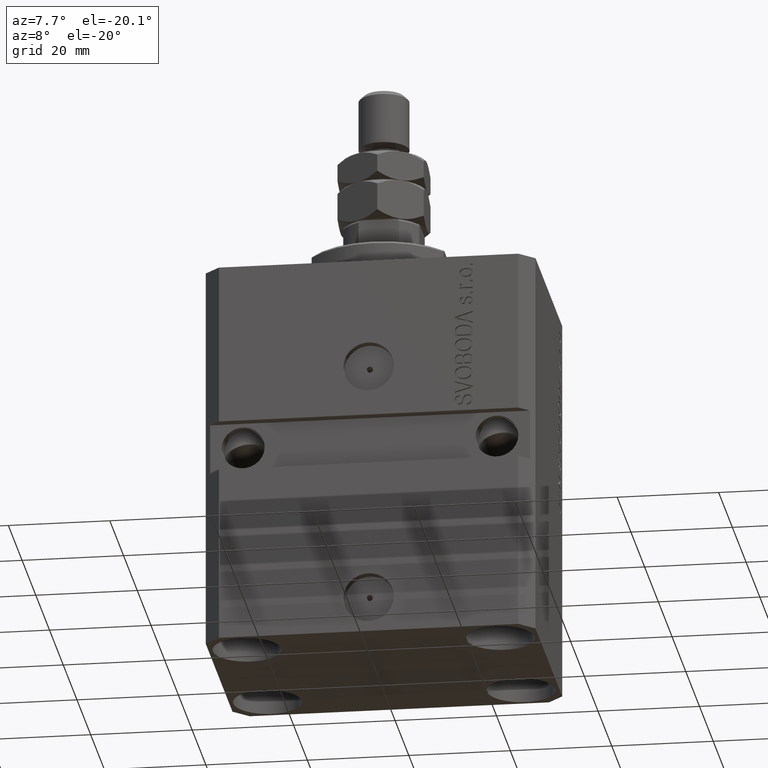
[diagram: clean part render]
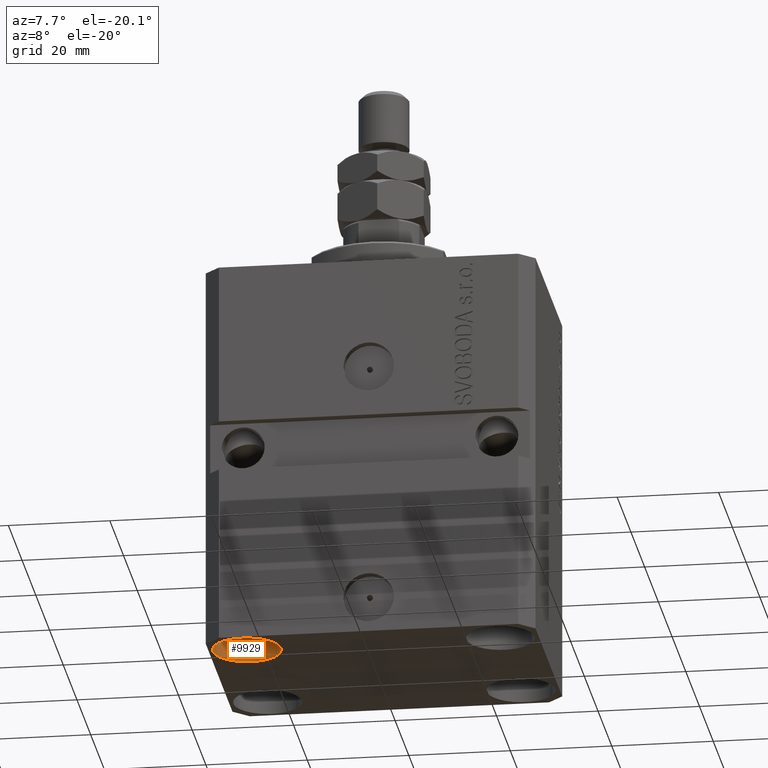
[diagram: same view with one face highlighted and labeled with its STEP entity id]
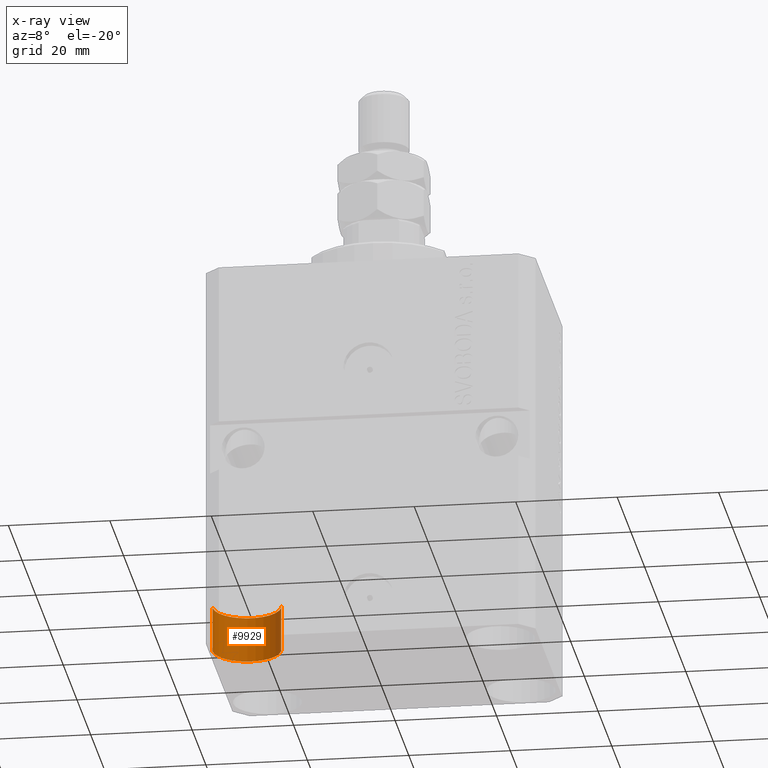
[diagram: x-ray of the same camera — body ghosted, the highlighted face saturated]
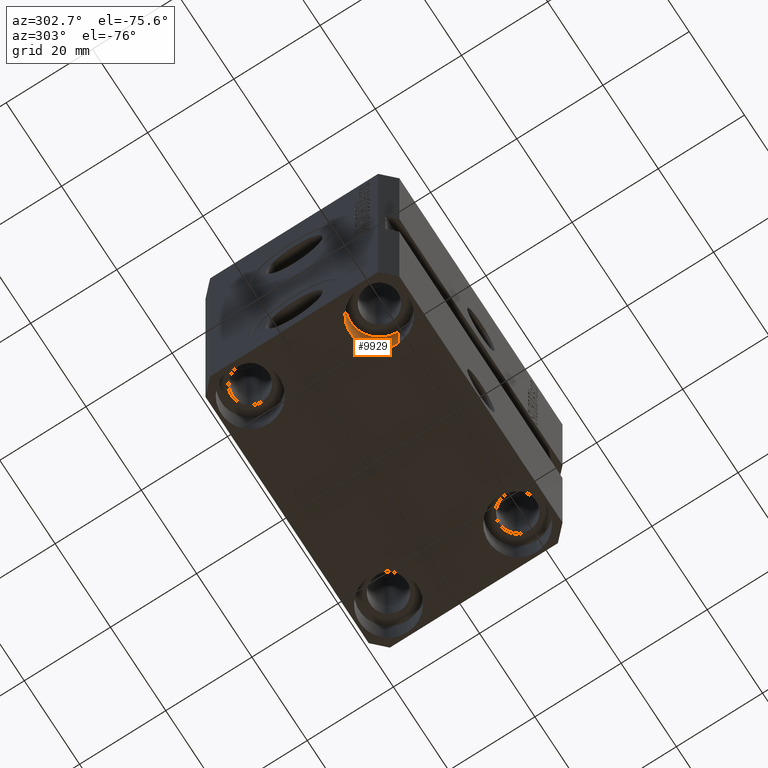
[diagram: same view with one face highlighted and labeled with its STEP entity id]
A machine part, auxiliary view. The second image highlights one B-rep face of the part: STEP entity #9929.
The next image is the same camera in x-ray: the body ghosted, the highlighted face saturated — about 0% of this face is hidden behind the body in this view.
A second angle (auxiliary view) of the same face is appended — the face is thin or edge-on in the first view.
In plain terms, the highlighted cylindrical surface (edge-blend (fillet) strip) has radius 6.75 mm, axis along (-0, -0, -1).
Its self-contained STEP definition (entity closure, byte-faithful):
#2388 = CARTESIAN_POINT ( 'NONE',  ( -31.75000000004154899, -15.00000000000000000, -68.00000000000000000 ) ) ;
#2689 = EDGE_CURVE ( 'NONE', #18065, #13466, #45170, .T. ) ;
#3659 = CARTESIAN_POINT ( 'NONE',  ( -31.75000000004154899, -15.00000000000000000, -68.00000000000000000 ) ) ;
#4916 = DIRECTION ( 'NONE',  ( -0.000000000000000000, -0.000000000000000000, 1.000000000000000000 ) ) ;
#7946 = CARTESIAN_POINT ( 'NONE',  ( -25.00000000000000355, -15.00000000000000000, -68.00000000000000000 ) ) ;
#9929 = ADVANCED_FACE ( 'NONE', ( #12130 ), #11909, .F. ) ;
#10765 = ORIENTED_EDGE ( 'NONE', *, *, #41566, .F. ) ;
#11909 = CYLINDRICAL_SURFACE ( 'NONE', #16028, 6.750000000041545434 ) ;
#12130 = FACE_OUTER_BOUND ( 'NONE', #18484, .T. ) ;
#13466 = VERTEX_POINT ( 'NONE', #25642 ) ;
#14927 = DIRECTION ( 'NONE',  ( -0.000000000000000000, -0.000000000000000000, -1.000000000000000000 ) ) ;
#15761 = DIRECTION ( 'NONE',  ( 1.000000000000000000, 0.000000000000000000, 0.000000000000000000 ) ) ;
#16028 = AXIS2_PLACEMENT_3D ( 'NONE', #32600, #14927, #43300 ) ;
#16716 = ORIENTED_EDGE ( 'NONE', *, *, #19083, .T. ) ;
#17258 = EDGE_CURVE ( 'NONE', #23511, #22307, #22716, .T. ) ;
#18065 = VERTEX_POINT ( 'NONE', #3659 ) ;
#18484 = EDGE_LOOP ( 'NONE', ( #39010, #16716, #27015, #10765 ) ) ;
#19083 = EDGE_CURVE ( 'NONE', #23511, #18065, #23623, .T. ) ;
#19261 = DIRECTION ( 'NONE',  ( -0.000000000000000000, -0.000000000000000000, 1.000000000000000000 ) ) ;
#20286 = VECTOR ( 'NONE', #27480, 1000.000000000000000 ) ;
#21892 = CARTESIAN_POINT ( 'NONE',  ( -18.24999999995845812, -15.00000000000000000, -68.00000000000000000 ) ) ;
#22114 = DIRECTION ( 'NONE',  ( 1.000000000000000000, 0.000000000000000000, 0.000000000000000000 ) ) ;
#22307 = VERTEX_POINT ( 'NONE', #35229 ) ;
#22716 = LINE ( 'NONE', #40621, #26550 ) ;
#23511 = VERTEX_POINT ( 'NONE', #21892 ) ;
#23623 = CIRCLE ( 'NONE', #29574, 6.750000000041541881 ) ;
#25642 = CARTESIAN_POINT ( 'NONE',  ( -31.75000000004154899, -15.00000000000000000, -77.00000000000000000 ) ) ;
#26550 = VECTOR ( 'NONE', #37144, 1000.000000000000000 ) ;
#26915 = CARTESIAN_POINT ( 'NONE',  ( -25.00000000000000355, -15.00000000000000000, -77.00000000000000000 ) ) ;
#27015 = ORIENTED_EDGE ( 'NONE', *, *, #2689, .T. ) ;
#27480 = DIRECTION ( 'NONE',  ( -0.000000000000000000, -0.000000000000000000, -1.000000000000000000 ) ) ;
#28062 = AXIS2_PLACEMENT_3D ( 'NONE', #26915, #19261, #15761 ) ;
#29574 = AXIS2_PLACEMENT_3D ( 'NONE', #7946, #4916, #22114 ) ;
#32600 = CARTESIAN_POINT ( 'NONE',  ( -25.00000000000000355, -15.00000000000000000, -68.00000000000000000 ) ) ;
#35229 = CARTESIAN_POINT ( 'NONE',  ( -18.24999999995845812, -15.00000000000000000, -77.00000000000000000 ) ) ;
#37144 = DIRECTION ( 'NONE',  ( -0.000000000000000000, -0.000000000000000000, -1.000000000000000000 ) ) ;
#39010 = ORIENTED_EDGE ( 'NONE', *, *, #17258, .F. ) ;
#40621 = CARTESIAN_POINT ( 'NONE',  ( -18.24999999995846167, -15.00000000000000000, -68.00000000000000000 ) ) ;
#41566 = EDGE_CURVE ( 'NONE', #22307, #13466, #44401, .T. ) ;
#43300 = DIRECTION ( 'NONE',  ( -1.000000000000000000, 0.000000000000000000, 0.000000000000000000 ) ) ;
#44401 = CIRCLE ( 'NONE', #28062, 6.750000000041541881 ) ;
#45170 = LINE ( 'NONE', #2388, #20286 ) ;